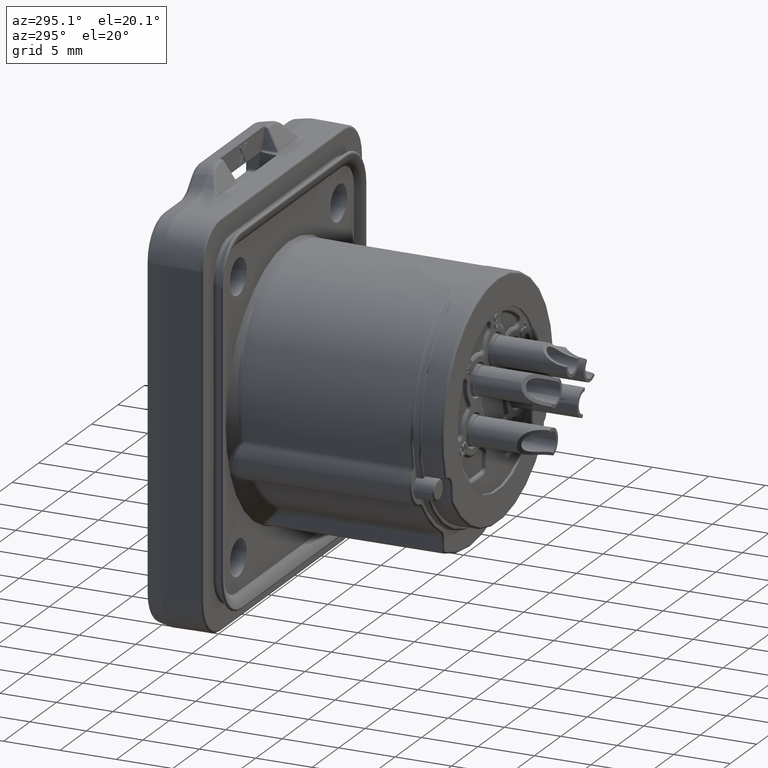
[diagram: clean part render]
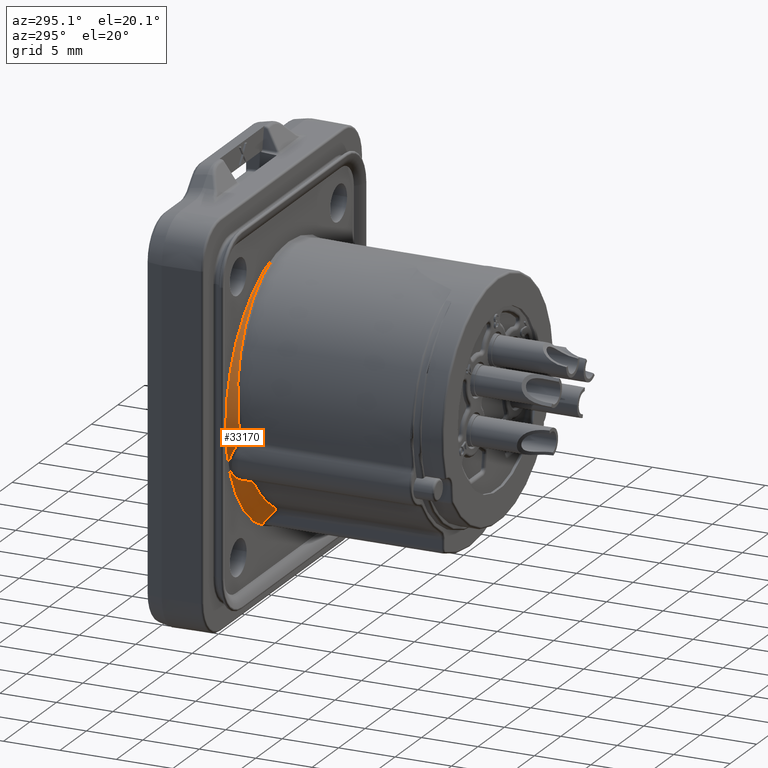
[diagram: same view with one face highlighted and labeled with its STEP entity id]
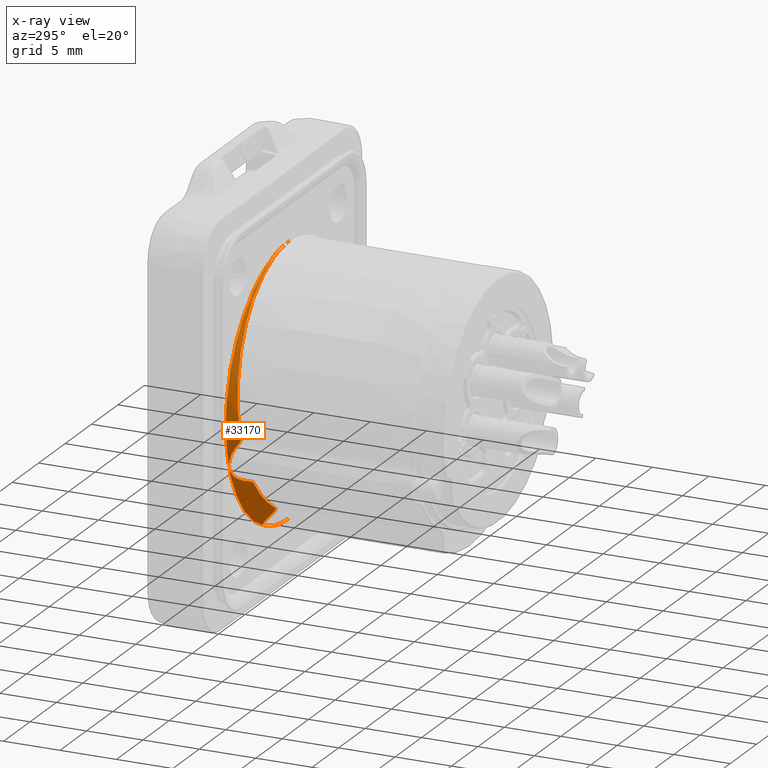
[diagram: x-ray of the same camera — body ghosted, the highlighted face saturated]
A machine part, auxiliary view. The second image highlights one B-rep face of the part: STEP entity #33170.
The next image is the same camera in x-ray: the body ghosted, the highlighted face saturated — about 0% of this face is hidden behind the body in this view.
In plain terms, the highlighted conical surface has half-angle 45 deg.
Its self-contained STEP definition (entity closure, byte-faithful):
#2681=CARTESIAN_POINT('',(0.E0,-1.5E0,0.E0));
#2682=DIRECTION('',(0.E0,-1.E0,0.E0));
#2683=DIRECTION('',(0.E0,0.E0,1.E0));
#2684=AXIS2_PLACEMENT_3D('',#2681,#2682,#2683);
#11467=DIRECTION('',(3.717279682544E-12,7.071067811866E-1,7.071067811865E-1));
#11468=VECTOR('',#11467,1.854316572482E-2);
#11469=CARTESIAN_POINT('',(-7.038133965590E-14,-1.513111998229E0,
1.183688800177E1));
#11470=LINE('',#11469,#11468);
#11471=CARTESIAN_POINT('',(-1.090305126242E1,-2.376418960605E0,
-1.242156993824E0));
#11472=CARTESIAN_POINT('',(-1.097591950154E1,-2.349084474330E0,
-8.440011650554E-1));
#11473=CARTESIAN_POINT('',(-1.107800209378E1,-2.294084967748E0,
-3.964164202372E-2));
#11474=CARTESIAN_POINT('',(-1.109829036363E1,-2.211506694226E0,
1.176620725936E0));
#11475=CARTESIAN_POINT('',(-1.098539970271E1,-2.129937177231E0,
2.387771553124E0));
#11476=CARTESIAN_POINT('',(-1.074070774651E1,-2.050234389044E0,
3.579455090268E0));
#11477=CARTESIAN_POINT('',(-1.036729766420E1,-1.973402538889E0,
4.736722159866E0));
#11478=CARTESIAN_POINT('',(-9.869674951312E0,-1.900244887366E0,
5.846105927986E0));
#11479=CARTESIAN_POINT('',(-9.253902675655E0,-1.831553701611E0,
6.894225903042E0));
#11480=CARTESIAN_POINT('',(-8.527526935613E0,-1.768076490203E0,
7.868458466426E0));
#11481=CARTESIAN_POINT('',(-7.699267306901E0,-1.710482942486E0,
8.757286400876E0));
#11482=CARTESIAN_POINT('',(-6.779063707961E0,-1.659346902119E0,
9.550193833663E0));
#11483=CARTESIAN_POINT('',(-5.777821886767E0,-1.615176039545E0,
1.023785292970E1));
#11484=CARTESIAN_POINT('',(-4.707446866614E0,-1.578423670079E0,
1.081207257424E1));
#11485=CARTESIAN_POINT('',(-3.580775090137E0,-1.549454557176E0,
1.126596811460E1));
#11486=CARTESIAN_POINT('',(-2.411282807257E0,-1.528554451686E0,
1.159411339740E1));
#11487=CARTESIAN_POINT('',(-1.212951345876E0,-1.515929717459E0,
1.179259993662E1));
#11488=CARTESIAN_POINT('',(-4.042176736582E-1,-1.513113522242E0,
1.183688619409E1));
#11489=CARTESIAN_POINT('',(-7.038133965589E-14,-1.513111998229E0,
1.183688800177E1));
#11491=CARTESIAN_POINT('',(-1.099257558542E1,-2.224145230610E0,
-1.716952634299E0));
#11492=CARTESIAN_POINT('',(-1.097281661975E1,-2.248639838903E0,
-1.684731696171E0));
#11493=CARTESIAN_POINT('',(-1.093999869418E1,-2.290915433611E0,
-1.619447990571E0));
#11494=CARTESIAN_POINT('',(-1.090842769216E1,-2.336220039651E0,
-1.520668550468E0));
#11495=CARTESIAN_POINT('',(-1.089277244568E1,-2.364501804142E0,
-1.425332590621E0));
#11496=CARTESIAN_POINT('',(-1.089075730963E1,-2.378363550999E0,
-1.330805157727E0));
#11497=CARTESIAN_POINT('',(-1.089770421452E1,-2.378424227303E0,
-1.271375524811E0));
#11498=CARTESIAN_POINT('',(-1.090305126242E1,-2.376418960605E0,
-1.242156993824E0));
#11500=CARTESIAN_POINT('',(-9.477681492551E0,-2.472161582190E0,
-5.338625494428E0));
#11501=CARTESIAN_POINT('',(-9.611439347794E0,-2.371013409780E0,
-5.307261450740E0));
#11502=CARTESIAN_POINT('',(-9.866233504383E0,-2.187503053754E0,
-5.223930311150E0));
#11503=CARTESIAN_POINT('',(-1.020637446525E1,-1.964671667273E0,
-5.048671233895E0));
#11504=CARTESIAN_POINT('',(-1.050126426376E1,-1.790944533484E0,
-4.834254459598E0));
#11505=CARTESIAN_POINT('',(-1.075076212127E1,-1.661974726279E0,
-4.589807886716E0));
#11506=CARTESIAN_POINT('',(-1.095612237896E1,-1.573681771025E0,
-4.322080962495E0));
#11507=CARTESIAN_POINT('',(-1.111891733054E1,-1.522821353518E0,
-4.035723866185E0));
#11508=CARTESIAN_POINT('',(-1.124020109136E1,-1.507372500422E0,
-3.733750290641E0));
#11509=CARTESIAN_POINT('',(-1.131998978259E1,-1.526723216116E0,
-3.418031592125E0));
#11510=CARTESIAN_POINT('',(-1.135693699349E1,-1.581675104989E0,
-3.090106642217E0));
#11511=CARTESIAN_POINT('',(-1.134832871718E1,-1.674308652643E0,
-2.751806292547E0));
#11512=CARTESIAN_POINT('',(-1.128999526893E1,-1.807998669522E0,
-2.405933555752E0));
#11513=CARTESIAN_POINT('',(-1.117665714516E1,-1.987022989455E0,
-2.057370916886E0));
#11514=CARTESIAN_POINT('',(-1.106108037580E1,-2.139220807676E0,
-1.828670207174E0));
#11515=CARTESIAN_POINT('',(-1.099257558542E1,-2.224145230610E0,
-1.716952634299E0));
#11517=CARTESIAN_POINT('',(-9.076276348849E0,-2.680536722203E0,
-5.608801500828E0));
#11518=CARTESIAN_POINT('',(-9.092847705337E0,-2.678864863057E0,
-5.585165667771E0));
#11519=CARTESIAN_POINT('',(-9.129561652185E0,-2.671556913124E0,
-5.539216968116E0));
#11520=CARTESIAN_POINT('',(-9.197852148879E0,-2.646548352406E0,
-5.474136780926E0));
#11521=CARTESIAN_POINT('',(-9.278591757398E0,-2.606099430178E0,
-5.416805868686E0));
#11522=CARTESIAN_POINT('',(-9.371421900842E0,-2.549258201001E0,
-5.369809717155E0));
#11523=CARTESIAN_POINT('',(-9.440961996386E0,-2.499928009857E0,
-5.347237482008E0));
#11524=CARTESIAN_POINT('',(-9.477681492551E0,-2.472161582190E0,
-5.338625494428E0));
#11526=CARTESIAN_POINT('',(-5.537738415247E0,-2.911993051732E0,
-8.847906096721E0));
#11527=CARTESIAN_POINT('',(-5.886532242132E0,-2.897456917181E0,
-8.646747962794E0));
#11528=CARTESIAN_POINT('',(-6.562080456871E0,-2.865701577691E0,
-8.206474843191E0));
#11529=CARTESIAN_POINT('',(-7.498247010789E0,-2.810634828277E0,
-7.439192114537E0));
#11530=CARTESIAN_POINT('',(-8.345738627767E0,-2.748905279143E0,
-6.574112702838E0));
#11531=CARTESIAN_POINT('',(-8.844710291800E0,-2.703878965908E0,
-5.939118848474E0));
#11532=CARTESIAN_POINT('',(-9.076276348849E0,-2.680536722203E0,
-5.608801500828E0));
#11534=CARTESIAN_POINT('',(-5.198273443278E0,-2.564881244182E0,
-9.449695221858E0));
#11535=CARTESIAN_POINT('',(-5.197876614982E0,-2.607798296343E0,
-9.400931428073E0));
#11536=CARTESIAN_POINT('',(-5.207030137072E0,-2.684891587004E0,
-9.307736612837E0));
#11537=CARTESIAN_POINT('',(-5.244781861486E0,-2.776485430723E0,
-9.181223718469E0));
#11538=CARTESIAN_POINT('',(-5.301461159047E0,-2.843508250676E0,
-9.071085875231E0));
#11539=CARTESIAN_POINT('',(-5.370853108405E0,-2.887074579778E0,
-8.979456526109E0));
#11540=CARTESIAN_POINT('',(-5.451525535383E0,-2.910341730102E0,
-8.903432090770E0));
#11541=CARTESIAN_POINT('',(-5.508343010409E0,-2.913216606159E0,
-8.864860646558E0));
#11542=CARTESIAN_POINT('',(-5.537738415247E0,-2.911993051732E0,
-8.847906096721E0));
#11544=CARTESIAN_POINT('',(-5.203529710680E0,-1.968887066010E0,
-1.012190743715E1));
#11545=CARTESIAN_POINT('',(-5.202955753452E0,-2.037493465059E0,
-1.004506119285E1));
#11546=CARTESIAN_POINT('',(-5.201800780520E0,-2.173113408779E0,
-9.892807927308E0));
#11547=CARTESIAN_POINT('',(-5.200048528941E0,-2.371730414497E0,
-9.668788583382E0));
#11548=CARTESIAN_POINT('',(-5.198867167961E0,-2.501021320915E0,
-9.522253171774E0));
#11549=CARTESIAN_POINT('',(-5.198273443278E0,-2.564881244182E0,
-9.449695221858E0));
#11551=CARTESIAN_POINT('',(-4.735692317146E0,-1.512132034334E0,
-1.084934727299E1));
#11552=CARTESIAN_POINT('',(-4.768881160763E0,-1.512131940786E0,
-1.083485995714E1));
#11553=CARTESIAN_POINT('',(-4.834002015180E0,-1.516890675780E0,
-1.080088185643E1));
#11554=CARTESIAN_POINT('',(-4.927348367061E0,-1.539683803987E0,
-1.073355120177E1));
#11555=CARTESIAN_POINT('',(-5.013802575950E0,-1.580174552323E0,
-1.064870519130E1));
#11556=CARTESIAN_POINT('',(-5.090192791066E0,-1.640846808304E0,
-1.054506626373E1));
#11557=CARTESIAN_POINT('',(-5.152215781068E0,-1.724407511631E0,
-1.042174720557E1));
#11558=CARTESIAN_POINT('',(-5.193716658655E0,-1.831895523827E0,
-1.028080415833E1));
#11559=CARTESIAN_POINT('',(-5.203936521372E0,-1.920231643393E0,
-1.017640666402E1));
#11560=CARTESIAN_POINT('',(-5.203529710680E0,-1.968887066010E0,
-1.012190743715E1));
#11562=CARTESIAN_POINT('',(0.E0,-1.512132034356E0,0.E0));
#11563=DIRECTION('',(0.E0,1.E0,0.E0));
#11564=DIRECTION('',(0.E0,0.E0,-1.E0));
#11565=AXIS2_PLACEMENT_3D('',#11562,#11563,#11564);
#11567=DIRECTION('',(-1.197779441913E-10,7.071067811865E-1,-7.071067811866E-1));
#11568=VECTOR('',#11567,1.715728752430E-2);
#11569=CARTESIAN_POINT('',(2.056515834016E-12,-1.512132034355E0,
-1.183786796564E1));
#11570=LINE('',#11569,#11568);
#17401=CARTESIAN_POINT('',(-4.477791144914E-11,-1.513111998229E0,
1.183688800177E1));
#17403=VERTEX_POINT('',#17401);
#17406=VERTEX_POINT('',#11526);
#17407=VERTEX_POINT('',#11532);
#17409=VERTEX_POINT('',#11524);
#17410=VERTEX_POINT('',#11515);
#17413=VERTEX_POINT('',#11498);
#17451=CARTESIAN_POINT('',(0.E0,-1.512132034356E0,-1.183786796564E1));
#17452=CARTESIAN_POINT('',(-4.735692316196E0,-1.512132034356E0,
-1.084934727338E1));
#17453=VERTEX_POINT('',#17451);
#17454=VERTEX_POINT('',#17452);
#17457=VERTEX_POINT('',#11560);
#17459=VERTEX_POINT('',#11549);
#17523=CARTESIAN_POINT('',(0.E0,-1.5E0,-1.185E1));
#17524=CARTESIAN_POINT('',(0.E0,-1.5E0,1.185E1));
#17525=VERTEX_POINT('',#17523);
#17526=VERTEX_POINT('',#17524);
#33150=CARTESIAN_POINT('',(0.E0,-2.206353526268E0,0.E0));
#33151=DIRECTION('',(0.E0,1.E0,0.E0));
#33152=DIRECTION('',(0.E0,0.E0,-1.E0));
#33153=AXIS2_PLACEMENT_3D('',#33150,#33151,#33152);
#33154=CONICAL_SURFACE('',#33153,1.114364647373E1,4.5E1);
#33155=ORIENTED_EDGE('',*,*,#20673,.F.);
#33156=ORIENTED_EDGE('',*,*,#20620,.F.);
#33157=ORIENTED_EDGE('',*,*,#20233,.F.);
#33158=ORIENTED_EDGE('',*,*,#20275,.F.);
#33160=ORIENTED_EDGE('',*,*,#33159,.F.);
#33161=ORIENTED_EDGE('',*,*,#20401,.F.);
#33162=ORIENTED_EDGE('',*,*,#20440,.F.);
#33163=ORIENTED_EDGE('',*,*,#20487,.F.);
#33164=ORIENTED_EDGE('',*,*,#20520,.F.);
#33165=ORIENTED_EDGE('',*,*,#20574,.F.);
#33166=ORIENTED_EDGE('',*,*,#20587,.F.);
#33167=ORIENTED_EDGE('',*,*,#20603,.T.);
#33168=EDGE_LOOP('',(#33155,#33156,#33157,#33158,#33160,#33161,#33162,#33163,
#33164,#33165,#33166,#33167));
#33169=FACE_OUTER_BOUND('',#33168,.F.);
#33170=ADVANCED_FACE('',(#33169),#33154,.T.);
#2685=CIRCLE('',#2684,1.185E1);
#11490=B_SPLINE_CURVE_WITH_KNOTS('',3,(#11471,#11472,#11473,#11474,#11475,
#11476,#11477,#11478,#11479,#11480,#11481,#11482,#11483,#11484,#11485,#11486,
#11487,#11488,#11489),.UNSPECIFIED.,.F.,.F.,(4,1,1,1,1,1,1,1,1,1,1,1,1,1,1,1,4),
(0.E0,6.25E-2,1.25E-1,1.875E-1,2.5E-1,3.125E-1,3.75E-1,4.375E-1,5.E-1,5.625E-1,
6.25E-1,6.875E-1,7.5E-1,8.125E-1,8.75E-1,9.375E-1,1.E0),.UNSPECIFIED.);
#11499=B_SPLINE_CURVE_WITH_KNOTS('',3,(#11491,#11492,#11493,#11494,#11495,
#11496,#11497,#11498),.UNSPECIFIED.,.F.,.F.,(4,1,1,1,1,4),(0.E0,2.E-1,4.E-1,
6.E-1,8.E-1,1.E0),.UNSPECIFIED.);
#11516=B_SPLINE_CURVE_WITH_KNOTS('',3,(#11500,#11501,#11502,#11503,#11504,
#11505,#11506,#11507,#11508,#11509,#11510,#11511,#11512,#11513,#11514,#11515),
.UNSPECIFIED.,.F.,.F.,(4,1,1,1,1,1,1,1,1,1,1,1,1,4),(0.E0,7.692307692308E-2,
1.538461538462E-1,2.307692307692E-1,3.076923076923E-1,3.846153846154E-1,
4.615384615385E-1,5.384615384615E-1,6.153846153846E-1,6.923076923077E-1,
7.692307692308E-1,8.461538461538E-1,9.230769230769E-1,1.E0),.UNSPECIFIED.);
#11525=B_SPLINE_CURVE_WITH_KNOTS('',3,(#11517,#11518,#11519,#11520,#11521,
#11522,#11523,#11524),.UNSPECIFIED.,.F.,.F.,(4,1,1,1,1,4),(0.E0,2.E-1,4.E-1,
6.E-1,8.E-1,1.E0),.UNSPECIFIED.);
#11533=B_SPLINE_CURVE_WITH_KNOTS('',3,(#11526,#11527,#11528,#11529,#11530,
#11531,#11532),.UNSPECIFIED.,.F.,.F.,(4,1,1,1,4),(0.E0,2.5E-1,5.E-1,7.5E-1,
1.E0),.UNSPECIFIED.);
#11543=B_SPLINE_CURVE_WITH_KNOTS('',3,(#11534,#11535,#11536,#11537,#11538,
#11539,#11540,#11541,#11542),.UNSPECIFIED.,.F.,.F.,(4,1,1,1,1,1,4),(0.E0,
1.666666666667E-1,3.333333333333E-1,5.E-1,6.666666666667E-1,8.333333333333E-1,
1.E0),.UNSPECIFIED.);
#11550=B_SPLINE_CURVE_WITH_KNOTS('',3,(#11544,#11545,#11546,#11547,#11548,
#11549),.UNSPECIFIED.,.F.,.F.,(4,1,1,4),(0.E0,3.333333333333E-1,
6.666666666667E-1,1.E0),.UNSPECIFIED.);
#11561=B_SPLINE_CURVE_WITH_KNOTS('',3,(#11551,#11552,#11553,#11554,#11555,
#11556,#11557,#11558,#11559,#11560),.UNSPECIFIED.,.F.,.F.,(4,1,1,1,1,1,1,4),(
0.E0,1.428571428571E-1,2.857142857143E-1,4.285714285714E-1,5.714285714286E-1,
7.142857142857E-1,8.571428571429E-1,1.E0),.UNSPECIFIED.);
#11566=CIRCLE('',#11565,1.183786796564E1);
#20233=EDGE_CURVE('',#17413,#17403,#11490,.T.);
#20275=EDGE_CURVE('',#17410,#17413,#11499,.T.);
#20401=EDGE_CURVE('',#17407,#17409,#11525,.T.);
#20440=EDGE_CURVE('',#17406,#17407,#11533,.T.);
#20487=EDGE_CURVE('',#17459,#17406,#11543,.T.);
#20520=EDGE_CURVE('',#17457,#17459,#11550,.T.);
#20574=EDGE_CURVE('',#17454,#17457,#11561,.T.);
#20587=EDGE_CURVE('',#17453,#17454,#11566,.T.);
#20603=EDGE_CURVE('',#17453,#17525,#11570,.T.);
#20620=EDGE_CURVE('',#17403,#17526,#11470,.T.);
#20673=EDGE_CURVE('',#17526,#17525,#2685,.T.);
#33159=EDGE_CURVE('',#17409,#17410,#11516,.T.);